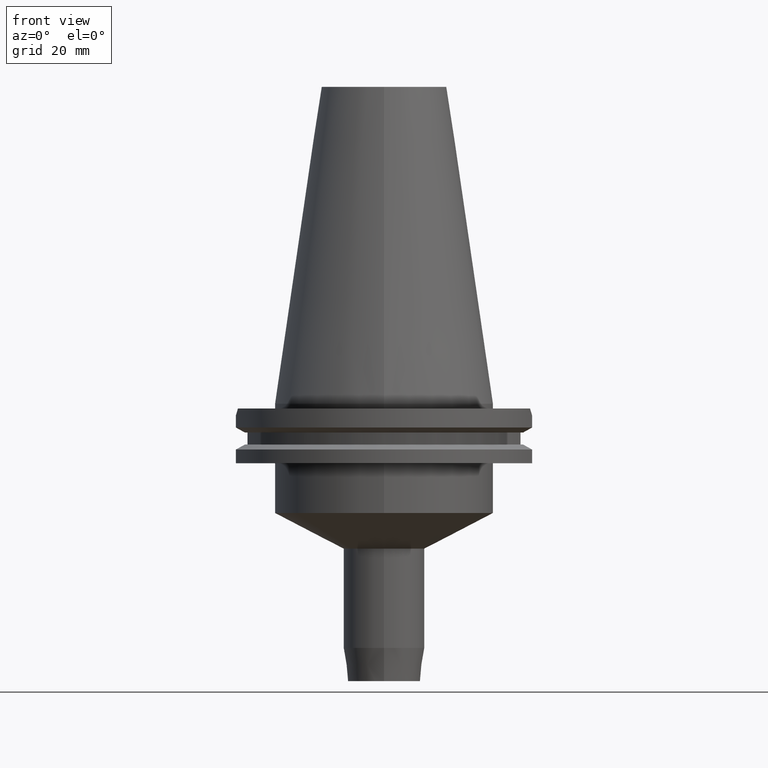
[diagram: clean part render]
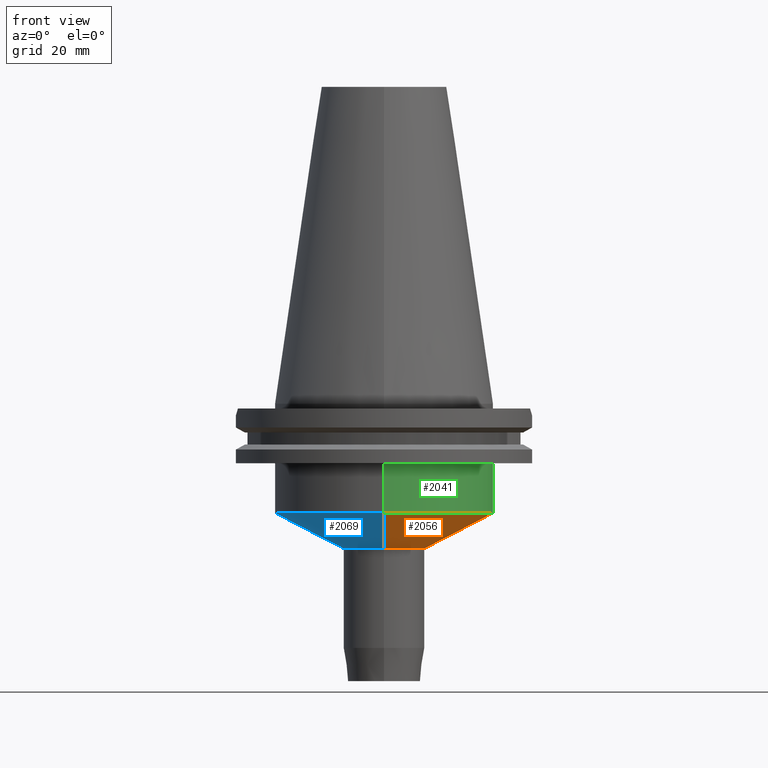
[diagram: same view with three faces highlighted in distinct colors, each labeled with its STEP entity id]
A machine part, front view with three faces highlighted in distinct colors.
Their STEP definitions:

[orange] entity #2056 — the highlighted conical surface has half-angle 62.479 deg.
#862=DIRECTION('',(0.E0,-8.868415338972E-1,-4.620736886633E-1));
#863=VECTOR('',#862,2.472256785680E1);
#864=CARTESIAN_POINT('',(0.E0,3.4925E1,-3.5E1));
#865=LINE('',#864,#863);
#869=CARTESIAN_POINT('',(0.E0,0.E0,-4.642364812282E1));
#870=DIRECTION('',(0.E0,0.E0,-1.E0));
#871=DIRECTION('',(0.E0,1.E0,0.E0));
#872=AXIS2_PLACEMENT_3D('',#869,#870,#871);
#877=CARTESIAN_POINT('',(0.E0,0.E0,-3.5E1));
#878=DIRECTION('',(0.E0,0.E0,1.E0));
#879=DIRECTION('',(0.E0,-1.E0,0.E0));
#880=AXIS2_PLACEMENT_3D('',#877,#878,#879);
#893=DIRECTION('',(0.E0,8.868415338972E-1,-4.620736886633E-1));
#894=VECTOR('',#893,2.472256785680E1);
#895=CARTESIAN_POINT('',(0.E0,-3.4925E1,-3.5E1));
#896=LINE('',#895,#894);
#1268=CARTESIAN_POINT('',(0.E0,1.3E1,-4.642364812282E1));
#1269=VERTEX_POINT('',#1268);
#1270=CARTESIAN_POINT('',(0.E0,-1.3E1,-4.642364812282E1));
#1271=VERTEX_POINT('',#1270);
#1272=CARTESIAN_POINT('',(0.E0,3.4925E1,-3.5E1));
#1273=VERTEX_POINT('',#1272);
#1274=CARTESIAN_POINT('',(0.E0,-3.4925E1,-3.5E1));
#1275=VERTEX_POINT('',#1274);
#2042=CARTESIAN_POINT('',(0.E0,0.E0,-4.071182406141E1));
#2043=DIRECTION('',(0.E0,0.E0,1.E0));
#2044=DIRECTION('',(0.E0,1.E0,0.E0));
#2045=AXIS2_PLACEMENT_3D('',#2042,#2043,#2044);
#2046=CONICAL_SURFACE('',#2045,2.39625E1,6.2479E1);
#2048=ORIENTED_EDGE('',*,*,#2047,.T.);
#2050=ORIENTED_EDGE('',*,*,#2049,.T.);
#2052=ORIENTED_EDGE('',*,*,#2051,.F.);
#2053=ORIENTED_EDGE('',*,*,#2035,.T.);
#2054=EDGE_LOOP('',(#2048,#2050,#2052,#2053));
#2055=FACE_OUTER_BOUND('',#2054,.F.);
#873=CIRCLE('',#872,1.3E1);
#881=CIRCLE('',#880,3.4925E1);
#2035=EDGE_CURVE('',#1275,#1273,#881,.T.);
#2047=EDGE_CURVE('',#1273,#1269,#865,.T.);
#2049=EDGE_CURVE('',#1269,#1271,#873,.T.);
#2051=EDGE_CURVE('',#1275,#1271,#896,.T.);
#2056=ADVANCED_FACE('',(#2055),#2046,.T.);

[blue] entity #2069 — the highlighted conical surface has half-angle 62.479 deg.
#862=DIRECTION('',(0.E0,-8.868415338972E-1,-4.620736886633E-1));
#863=VECTOR('',#862,2.472256785680E1);
#864=CARTESIAN_POINT('',(0.E0,3.4925E1,-3.5E1));
#865=LINE('',#864,#863);
#885=CARTESIAN_POINT('',(0.E0,0.E0,-3.5E1));
#886=DIRECTION('',(0.E0,0.E0,1.E0));
#887=DIRECTION('',(0.E0,1.E0,0.E0));
#888=AXIS2_PLACEMENT_3D('',#885,#886,#887);
#893=DIRECTION('',(0.E0,8.868415338972E-1,-4.620736886633E-1));
#894=VECTOR('',#893,2.472256785680E1);
#895=CARTESIAN_POINT('',(0.E0,-3.4925E1,-3.5E1));
#896=LINE('',#895,#894);
#900=CARTESIAN_POINT('',(0.E0,0.E0,-4.642364812282E1));
#901=DIRECTION('',(0.E0,0.E0,-1.E0));
#902=DIRECTION('',(0.E0,-1.E0,0.E0));
#903=AXIS2_PLACEMENT_3D('',#900,#901,#902);
#1268=CARTESIAN_POINT('',(0.E0,1.3E1,-4.642364812282E1));
#1269=VERTEX_POINT('',#1268);
#1270=CARTESIAN_POINT('',(0.E0,-1.3E1,-4.642364812282E1));
#1271=VERTEX_POINT('',#1270);
#1272=CARTESIAN_POINT('',(0.E0,3.4925E1,-3.5E1));
#1273=VERTEX_POINT('',#1272);
#1274=CARTESIAN_POINT('',(0.E0,-3.4925E1,-3.5E1));
#1275=VERTEX_POINT('',#1274);
#2057=CARTESIAN_POINT('',(0.E0,0.E0,-4.071182406141E1));
#2058=DIRECTION('',(0.E0,0.E0,1.E0));
#2059=DIRECTION('',(0.E0,1.E0,0.E0));
#2060=AXIS2_PLACEMENT_3D('',#2057,#2058,#2059);
#2061=CONICAL_SURFACE('',#2060,2.39625E1,6.2479E1);
#2062=ORIENTED_EDGE('',*,*,#2047,.F.);
#2063=ORIENTED_EDGE('',*,*,#2024,.T.);
#2064=ORIENTED_EDGE('',*,*,#2051,.T.);
#2066=ORIENTED_EDGE('',*,*,#2065,.T.);
#2067=EDGE_LOOP('',(#2062,#2063,#2064,#2066));
#2068=FACE_OUTER_BOUND('',#2067,.F.);
#889=CIRCLE('',#888,3.4925E1);
#904=CIRCLE('',#903,1.3E1);
#2024=EDGE_CURVE('',#1273,#1275,#889,.T.);
#2047=EDGE_CURVE('',#1273,#1269,#865,.T.);
#2051=EDGE_CURVE('',#1275,#1271,#896,.T.);
#2065=EDGE_CURVE('',#1271,#1269,#904,.T.);
#2069=ADVANCED_FACE('',(#2068),#2061,.T.);

[green] entity #2041 — the highlighted cylindrical surface (partial cylindrical patch) has radius 34.925 mm, axis along (0, 0, -1).
#259=CARTESIAN_POINT('',(0.E0,2.585535554700E-14,-1.905E1));
#260=DIRECTION('',(0.E0,0.E0,-1.E0));
#261=DIRECTION('',(0.E0,1.E0,0.E0));
#262=AXIS2_PLACEMENT_3D('',#259,#260,#261);
#848=DIRECTION('',(0.E0,0.E0,-1.E0));
#849=VECTOR('',#848,1.595E1);
#850=CARTESIAN_POINT('',(0.E0,-3.4925E1,-1.905E1));
#851=LINE('',#850,#849);
#855=DIRECTION('',(0.E0,0.E0,-1.E0));
#856=VECTOR('',#855,1.595E1);
#857=CARTESIAN_POINT('',(0.E0,3.4925E1,-1.905E1));
#858=LINE('',#857,#856);
#877=CARTESIAN_POINT('',(0.E0,0.E0,-3.5E1));
#878=DIRECTION('',(0.E0,0.E0,1.E0));
#879=DIRECTION('',(0.E0,-1.E0,0.E0));
#880=AXIS2_PLACEMENT_3D('',#877,#878,#879);
#1272=CARTESIAN_POINT('',(0.E0,3.4925E1,-3.5E1));
#1273=VERTEX_POINT('',#1272);
#1274=CARTESIAN_POINT('',(0.E0,-3.4925E1,-3.5E1));
#1275=VERTEX_POINT('',#1274);
#1276=CARTESIAN_POINT('',(0.E0,3.4925E1,-1.905E1));
#1277=VERTEX_POINT('',#1276);
#1278=CARTESIAN_POINT('',(0.E0,-3.4925E1,-1.905E1));
#1279=VERTEX_POINT('',#1278);
#2029=CARTESIAN_POINT('',(0.E0,2.585535554700E-14,1.11125E2));
#2030=DIRECTION('',(0.E0,0.E0,-1.E0));
#2031=DIRECTION('',(0.E0,-1.E0,0.E0));
#2032=AXIS2_PLACEMENT_3D('',#2029,#2030,#2031);
#2033=CYLINDRICAL_SURFACE('',#2032,3.4925E1);
#2034=ORIENTED_EDGE('',*,*,#2019,.T.);
#2036=ORIENTED_EDGE('',*,*,#2035,.F.);
#2037=ORIENTED_EDGE('',*,*,#2022,.F.);
#2038=ORIENTED_EDGE('',*,*,#1567,.F.);
#2039=EDGE_LOOP('',(#2034,#2036,#2037,#2038));
#2040=FACE_OUTER_BOUND('',#2039,.F.);
#263=CIRCLE('',#262,3.4925E1);
#881=CIRCLE('',#880,3.4925E1);
#1567=EDGE_CURVE('',#1277,#1279,#263,.T.);
#2019=EDGE_CURVE('',#1277,#1273,#858,.T.);
#2022=EDGE_CURVE('',#1279,#1275,#851,.T.);
#2035=EDGE_CURVE('',#1275,#1273,#881,.T.);
#2041=ADVANCED_FACE('',(#2040),#2033,.T.);